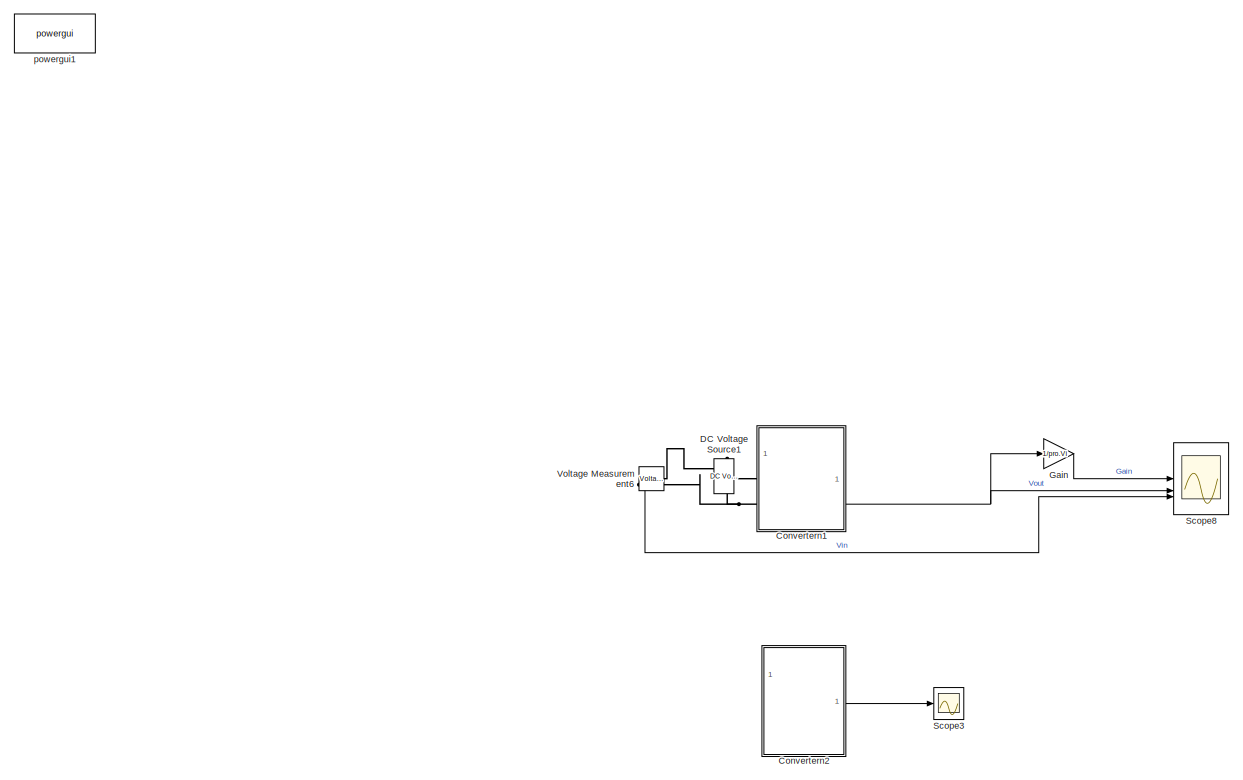
[diagram: root canvas - part 1/2, top left region]
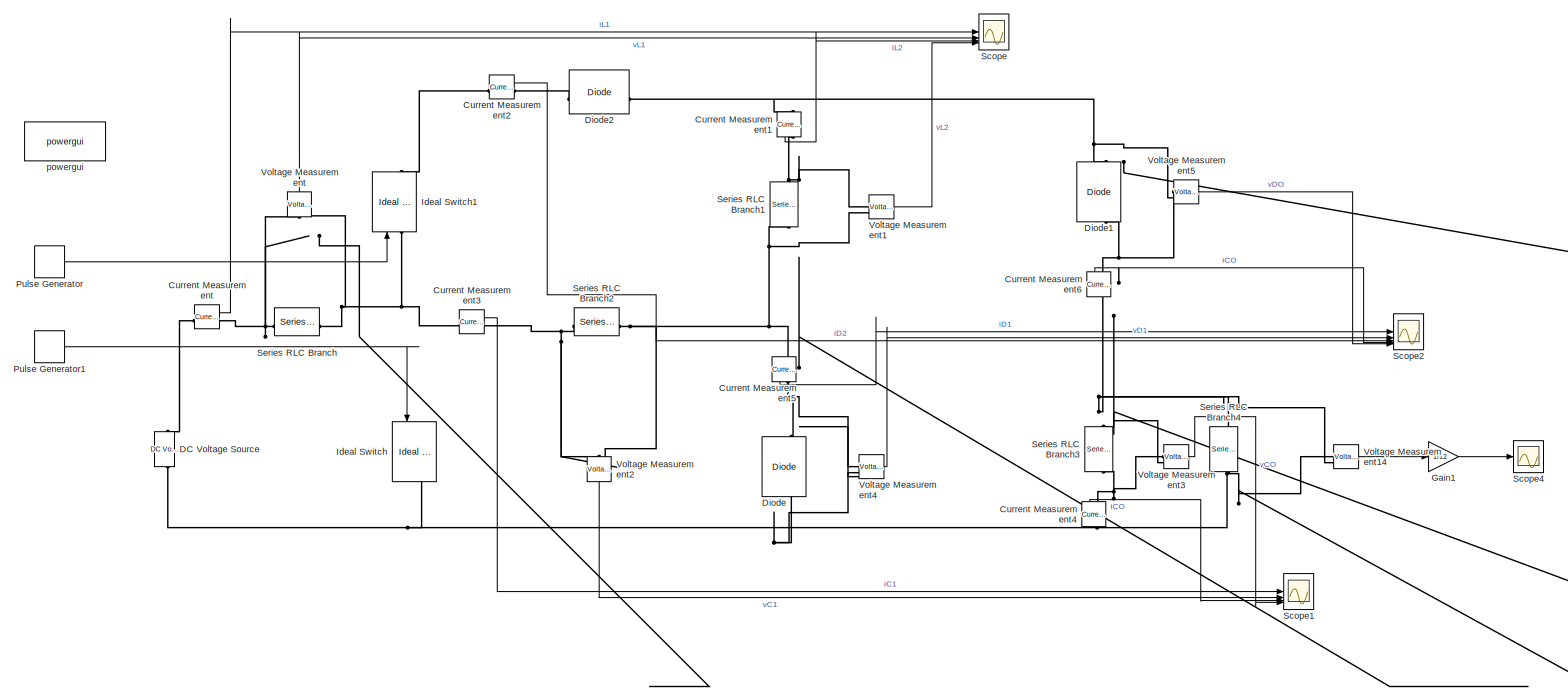
[diagram: root canvas - part 2/2, top center region]
MODEL slx_2b5bfb5463e5
KIND model
CONFIG AbsTol = auto
CONFIG EnableMultiTasking = off
CONFIG FixedStep = auto
CONFIG MaxStep = auto
CONFIG MinStep = auto
CONFIG RelTol = 1e-3
CONFIG SampleTimeConstraint = Unconstrained
CONFIG SolverName = VariableStepAuto
CONFIG StartTime = 0.0
CONFIG StopTime = 100/8000
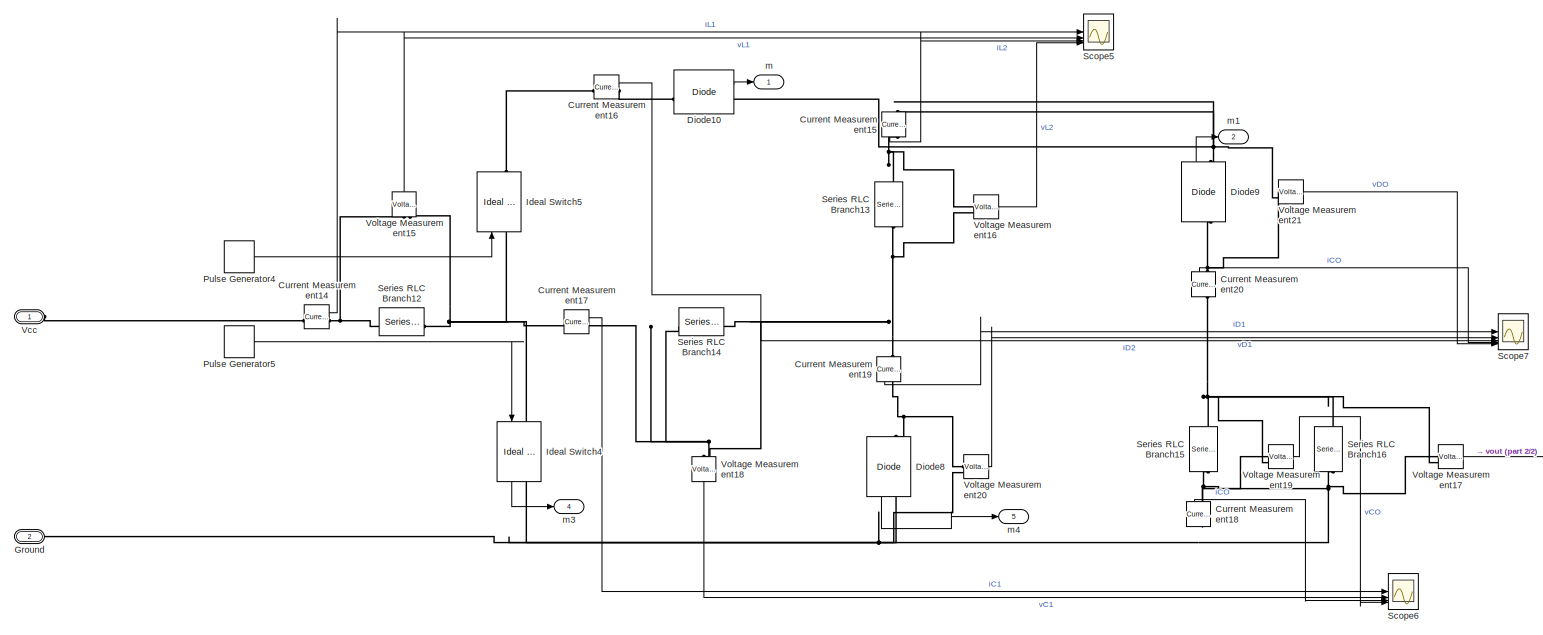
[diagram: Convertern1 - part 1/2, most of the canvas]
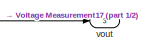
[diagram: Convertern1 - part 2/2, bottom right region]
BLOCK [SubSystem] Convertern1
BLOCK [Reference] Convertern1/Current Measurement14  REF=spsCurrentMeasurementLib/Current Measurement
  LibrarySourceBlock = sps_lib/Sensors and Measurements/Current Measurement
  SourceBlock = spsCurrentMeasurementLib/Current Measurement
  SourceType = Current Measurement
  UserDataPersistent = on
BLOCK [Reference] Convertern1/Current Measurement15  REF=spsCurrentMeasurementLib/Current Measurement
  LibrarySourceBlock = sps_lib/Sensors and Measurements/Current Measurement
  NameLocation = left
  SourceBlock = spsCurrentMeasurementLib/Current Measurement
  SourceType = Current Measurement
  UserDataPersistent = on
BLOCK [Reference] Convertern1/Current Measurement16  REF=spsCurrentMeasurementLib/Current Measurement
  LibrarySourceBlock = sps_lib/Sensors and Measurements/Current Measurement
  SourceBlock = spsCurrentMeasurementLib/Current Measurement
  SourceType = Current Measurement
  UserDataPersistent = on
BLOCK [Reference] Convertern1/Current Measurement17  REF=spsCurrentMeasurementLib/Current Measurement
  LibrarySourceBlock = sps_lib/Sensors and Measurements/Current Measurement
  SourceBlock = spsCurrentMeasurementLib/Current Measurement
  SourceType = Current Measurement
  UserDataPersistent = on
BLOCK [Reference] Convertern1/Current Measurement18  REF=spsCurrentMeasurementLib/Current Measurement
  LibrarySourceBlock = sps_lib/Sensors and Measurements/Current Measurement
  NameLocation = right
  SourceBlock = spsCurrentMeasurementLib/Current Measurement
  SourceType = Current Measurement
  UserDataPersistent = on
BLOCK [Reference] Convertern1/Current Measurement19  REF=spsCurrentMeasurementLib/Current Measurement
  LibrarySourceBlock = sps_lib/Sensors and Measurements/Current Measurement
  NameLocation = left
  SourceBlock = spsCurrentMeasurementLib/Current Measurement
  SourceType = Current Measurement
  UserDataPersistent = on
BLOCK [Reference] Convertern1/Current Measurement20  REF=spsCurrentMeasurementLib/Current Measurement
  LibrarySourceBlock = sps_lib/Sensors and Measurements/Current Measurement
  NameLocation = right
  SourceBlock = spsCurrentMeasurementLib/Current Measurement
  SourceType = Current Measurement
  UserDataPersistent = on
BLOCK [Reference] Convertern1/Diode10  REF=spsDiodeLib/Diode
  LibrarySourceBlock = sps_lib/Power Electronics/Diode
  SourceBlock = spsDiodeLib/Diode
  SourceType = Diode
BLOCK [Reference] Convertern1/Diode8  REF=spsDiodeLib/Diode
  LibrarySourceBlock = sps_lib/Power Electronics/Diode
  NameLocation = left
  SourceBlock = spsDiodeLib/Diode
  SourceType = Diode
BLOCK [Reference] Convertern1/Diode9  REF=spsDiodeLib/Diode
  LibrarySourceBlock = sps_lib/Power Electronics/Diode
  NameLocation = right
  SourceBlock = spsDiodeLib/Diode
  SourceType = Diode
BLOCK [PMIOPort] Convertern1/Ground
  Port = 2
  Side = Left
BLOCK [Reference] Convertern1/Ideal Switch4  REF=spsIdealSwitchLib/Ideal Switch
  LibrarySourceBlock = sps_lib/Power Electronics/Ideal Switch
  NameLocation = left
  SourceBlock = spsIdealSwitchLib/Ideal Switch
  SourceType = Ideal Switch
BLOCK [Reference] Convertern1/Ideal Switch5  REF=spsIdealSwitchLib/Ideal Switch
  LibrarySourceBlock = sps_lib/Power Electronics/Ideal Switch
  NameLocation = right
  SourceBlock = spsIdealSwitchLib/Ideal Switch
  SourceType = Ideal Switch
BLOCK [DiscretePulseGenerator] Convertern1/Pulse Generator4
  Period = 1/pro.f
  PulseType = Time based
  PulseWidth = 50
BLOCK [DiscretePulseGenerator] Convertern1/Pulse Generator5
  Period = 1/pro.f
  PulseType = Time based
  PulseWidth = 50
BLOCK [Scope] Convertern1/Scope5
  Floating = off
  NumInputPorts = 4
  ScopeSpecificationString = Simulink.scopes.TimeScopeBlockCfg('CurrentConfiguration', extmgr.ConfigurationSet(extmgr.Configuration('Core','General UI',true),extmgr.Configuration('Core','Source UI',true),extmgr.Configuration('Sources','WiredSimulink',true,'DataLoggingVariableName','ScopeData1'),extmgr.Configuration('Visuals','Time Domain',true,'SerializedDisplays',{struct('MinYLimReal','-1.72052','MaxYLimReal','8.05356','YLab...<+3781ch>
BLOCK [Scope] Convertern1/Scope6
  Floating = off
  NumInputPorts = 4
  ScopeSpecificationString = Simulink.scopes.TimeScopeBlockCfg('CurrentConfiguration', extmgr.ConfigurationSet(extmgr.Configuration('Core','General UI',true),extmgr.Configuration('Core','Source UI',true),extmgr.Configuration('Sources','WiredSimulink',true,'DataLoggingVariableName','ScopeData2'),extmgr.Configuration('Visuals','Time Domain',true,'SerializedDisplays',{struct('MinYLimReal','-5.68934','MaxYLimReal','7.62714','YLab...<+3411ch>
BLOCK [Scope] Convertern1/Scope7
  Floating = off
  NumInputPorts = 5
  ScopeSpecificationString = Simulink.scopes.TimeScopeBlockCfg('CurrentConfiguration', extmgr.ConfigurationSet(extmgr.Configuration('Core','General UI',true),extmgr.Configuration('Core','Source UI',true),extmgr.Configuration('Sources','WiredSimulink',true,'DataLoggingVariableName','ScopeData3'),extmgr.Configuration('Visuals','Time Domain',true,'SerializedDisplays',{struct('MinYLimReal','-3.28408','MaxYLimReal','29.55671','YLa...<+6150ch>
BLOCK [Reference] Convertern1/Series RLC Branch12  REF=spsSeriesRLCBranchLib/Series RLC Branch
  LibrarySourceBlock = sps_lib/Passives/Series RLC Branch
  SourceBlock = spsSeriesRLCBranchLib/Series RLC Branch
  SourceType = Series RLC Branch
BLOCK [Reference] Convertern1/Series RLC Branch13  REF=spsSeriesRLCBranchLib/Series RLC Branch
  LibrarySourceBlock = sps_lib/Passives/Series RLC Branch
  NameLocation = left
  SourceBlock = spsSeriesRLCBranchLib/Series RLC Branch
  SourceType = Series RLC Branch
BLOCK [Reference] Convertern1/Series RLC Branch14  REF=spsSeriesRLCBranchLib/Series RLC Branch
  LibrarySourceBlock = sps_lib/Passives/Series RLC Branch
  SourceBlock = spsSeriesRLCBranchLib/Series RLC Branch
  SourceType = Series RLC Branch
BLOCK [Reference] Convertern1/Series RLC Branch15  REF=spsSeriesRLCBranchLib/Series RLC Branch
  LibrarySourceBlock = sps_lib/Passives/Series RLC Branch
  NameLocation = right
  SourceBlock = spsSeriesRLCBranchLib/Series RLC Branch
  SourceType = Series RLC Branch
BLOCK [Reference] Convertern1/Series RLC Branch16  REF=spsSeriesRLCBranchLib/Series RLC Branch
  LibrarySourceBlock = sps_lib/Passives/Series RLC Branch
  NameLocation = right
  SourceBlock = spsSeriesRLCBranchLib/Series RLC Branch
  SourceType = Series RLC Branch
BLOCK [PMIOPort] Convertern1/Vcc
  Side = Left
BLOCK [Reference] Convertern1/Voltage Measurement15  REF=spsVoltageMeasurementLib/Voltage Measurement
  LibrarySourceBlock = sps_lib/Sensors and Measurements/Voltage Measurement
  NameLocation = right
  SourceBlock = spsVoltageMeasurementLib/Voltage Measurement
  SourceType = Voltage Measurement
  UserDataPersistent = on
BLOCK [Reference] Convertern1/Voltage Measurement16  REF=spsVoltageMeasurementLib/Voltage Measurement
  LibrarySourceBlock = sps_lib/Sensors and Measurements/Voltage Measurement
  SourceBlock = spsVoltageMeasurementLib/Voltage Measurement
  SourceType = Voltage Measurement
  UserDataPersistent = on
BLOCK [Reference] Convertern1/Voltage Measurement17  REF=spsVoltageMeasurementLib/Voltage Measurement
  LibrarySourceBlock = sps_lib/Sensors and Measurements/Voltage Measurement
  SourceBlock = spsVoltageMeasurementLib/Voltage Measurement
  SourceType = Voltage Measurement
  UserDataPersistent = on
BLOCK [Reference] Convertern1/Voltage Measurement18  REF=spsVoltageMeasurementLib/Voltage Measurement
  LibrarySourceBlock = sps_lib/Sensors and Measurements/Voltage Measurement
  NameLocation = left
  SourceBlock = spsVoltageMeasurementLib/Voltage Measurement
  SourceType = Voltage Measurement
  UserDataPersistent = on
BLOCK [Reference] Convertern1/Voltage Measurement19  REF=spsVoltageMeasurementLib/Voltage Measurement
  LibrarySourceBlock = sps_lib/Sensors and Measurements/Voltage Measurement
  SourceBlock = spsVoltageMeasurementLib/Voltage Measurement
  SourceType = Voltage Measurement
  UserDataPersistent = on
BLOCK [Reference] Convertern1/Voltage Measurement20  REF=spsVoltageMeasurementLib/Voltage Measurement
  LibrarySourceBlock = sps_lib/Sensors and Measurements/Voltage Measurement
  SourceBlock = spsVoltageMeasurementLib/Voltage Measurement
  SourceType = Voltage Measurement
  UserDataPersistent = on
BLOCK [Reference] Convertern1/Voltage Measurement21  REF=spsVoltageMeasurementLib/Voltage Measurement
  LibrarySourceBlock = sps_lib/Sensors and Measurements/Voltage Measurement
  SourceBlock = spsVoltageMeasurementLib/Voltage Measurement
  SourceType = Voltage Measurement
  UserDataPersistent = on
BLOCK [Outport] Convertern1/m
BLOCK [Outport] Convertern1/m1
  Port = 2
BLOCK [Outport] Convertern1/m3
  Port = 4
BLOCK [Outport] Convertern1/m4
  Port = 5
BLOCK [Outport] Convertern1/vout
  Port = 3
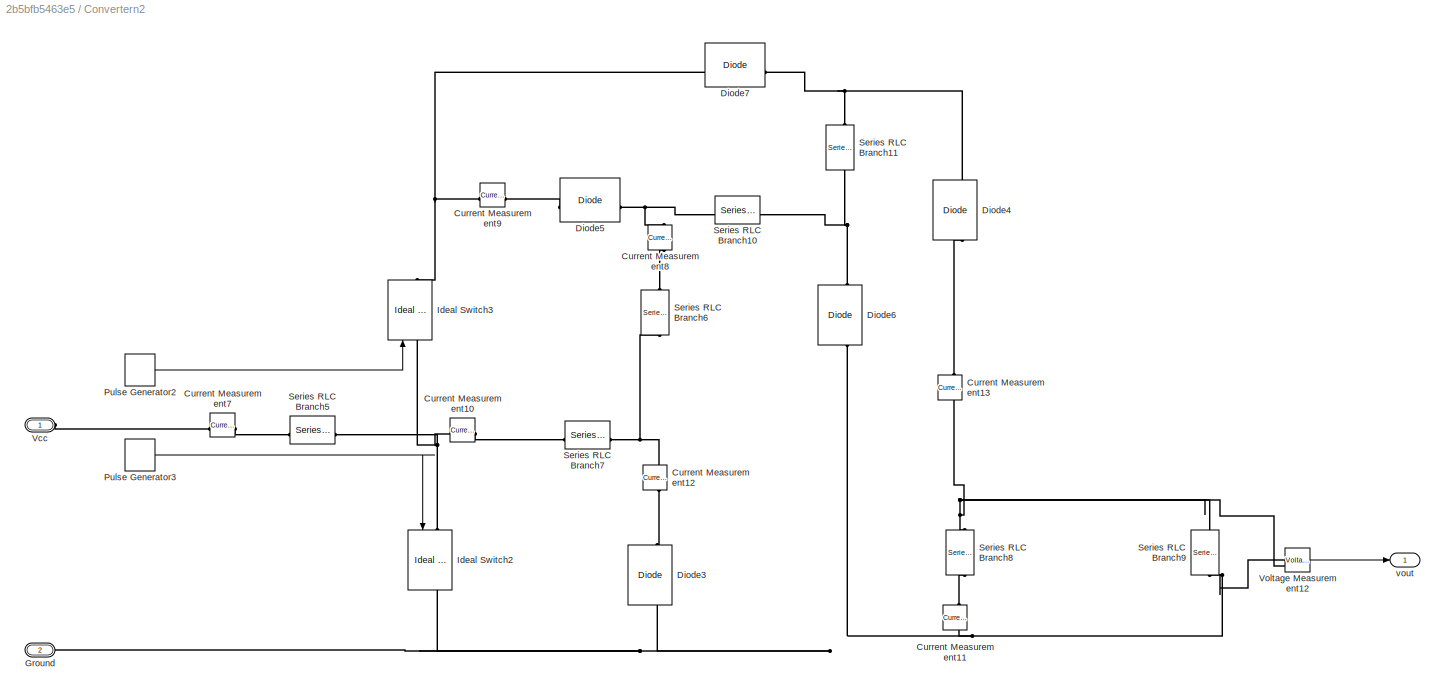
BLOCK [SubSystem] Convertern2
BLOCK [Reference] Convertern2/Current Measurement10  REF=spsCurrentMeasurementLib/Current Measurement
  LibrarySourceBlock = sps_lib/Sensors and Measurements/Current Measurement
  SourceBlock = spsCurrentMeasurementLib/Current Measurement
  SourceType = Current Measurement
  UserDataPersistent = on
BLOCK [Reference] Convertern2/Current Measurement11  REF=spsCurrentMeasurementLib/Current Measurement
  LibrarySourceBlock = sps_lib/Sensors and Measurements/Current Measurement
  NameLocation = right
  SourceBlock = spsCurrentMeasurementLib/Current Measurement
  SourceType = Current Measurement
  UserDataPersistent = on
BLOCK [Reference] Convertern2/Current Measurement12  REF=spsCurrentMeasurementLib/Current Measurement
  LibrarySourceBlock = sps_lib/Sensors and Measurements/Current Measurement
  NameLocation = left
  SourceBlock = spsCurrentMeasurementLib/Current Measurement
  SourceType = Current Measurement
  UserDataPersistent = on
BLOCK [Reference] Convertern2/Current Measurement13  REF=spsCurrentMeasurementLib/Current Measurement
  LibrarySourceBlock = sps_lib/Sensors and Measurements/Current Measurement
  NameLocation = right
  SourceBlock = spsCurrentMeasurementLib/Current Measurement
  SourceType = Current Measurement
  UserDataPersistent = on
BLOCK [Reference] Convertern2/Current Measurement7  REF=spsCurrentMeasurementLib/Current Measurement
  LibrarySourceBlock = sps_lib/Sensors and Measurements/Current Measurement
  SourceBlock = spsCurrentMeasurementLib/Current Measurement
  SourceType = Current Measurement
  UserDataPersistent = on
BLOCK [Reference] Convertern2/Current Measurement8  REF=spsCurrentMeasurementLib/Current Measurement
  LibrarySourceBlock = sps_lib/Sensors and Measurements/Current Measurement
  NameLocation = left
  SourceBlock = spsCurrentMeasurementLib/Current Measurement
  SourceType = Current Measurement
  UserDataPersistent = on
BLOCK [Reference] Convertern2/Current Measurement9  REF=spsCurrentMeasurementLib/Current Measurement
  LibrarySourceBlock = sps_lib/Sensors and Measurements/Current Measurement
  SourceBlock = spsCurrentMeasurementLib/Current Measurement
  SourceType = Current Measurement
  UserDataPersistent = on
BLOCK [Reference] Convertern2/Diode3  REF=spsDiodeLib/Diode
  LibrarySourceBlock = sps_lib/Power Electronics/Diode
  NameLocation = left
  SourceBlock = spsDiodeLib/Diode
  SourceType = Diode
BLOCK [Reference] Convertern2/Diode4  REF=spsDiodeLib/Diode
  LibrarySourceBlock = sps_lib/Power Electronics/Diode
  NameLocation = right
  SourceBlock = spsDiodeLib/Diode
  SourceType = Diode
BLOCK [Reference] Convertern2/Diode5  REF=spsDiodeLib/Diode
  LibrarySourceBlock = sps_lib/Power Electronics/Diode
  SourceBlock = spsDiodeLib/Diode
  SourceType = Diode
BLOCK [Reference] Convertern2/Diode6  REF=spsDiodeLib/Diode
  LibrarySourceBlock = sps_lib/Power Electronics/Diode
  NameLocation = left
  SourceBlock = spsDiodeLib/Diode
  SourceType = Diode
BLOCK [Reference] Convertern2/Diode7  REF=spsDiodeLib/Diode
  LibrarySourceBlock = sps_lib/Power Electronics/Diode
  SourceBlock = spsDiodeLib/Diode
  SourceType = Diode
BLOCK [PMIOPort] Convertern2/Ground
  Port = 2
  Side = Left
BLOCK [Reference] Convertern2/Ideal Switch2  REF=spsIdealSwitchLib/Ideal Switch
  LibrarySourceBlock = sps_lib/Power Electronics/Ideal Switch
  NameLocation = left
  SourceBlock = spsIdealSwitchLib/Ideal Switch
  SourceType = Ideal Switch
BLOCK [Reference] Convertern2/Ideal Switch3  REF=spsIdealSwitchLib/Ideal Switch
  LibrarySourceBlock = sps_lib/Power Electronics/Ideal Switch
  NameLocation = right
  SourceBlock = spsIdealSwitchLib/Ideal Switch
  SourceType = Ideal Switch
BLOCK [DiscretePulseGenerator] Convertern2/Pulse Generator2
  Period = 1/pro.f
  PulseType = Time based
  PulseWidth = 50
BLOCK [DiscretePulseGenerator] Convertern2/Pulse Generator3
  Period = 1/pro.f
  PulseType = Time based
  PulseWidth = 50
BLOCK [Reference] Convertern2/Series RLC Branch10  REF=spsSeriesRLCBranchLib/Series RLC Branch
  LibrarySourceBlock = sps_lib/Passives/Series RLC Branch
  SourceBlock = spsSeriesRLCBranchLib/Series RLC Branch
  SourceType = Series RLC Branch
BLOCK [Reference] Convertern2/Series RLC Branch11  REF=spsSeriesRLCBranchLib/Series RLC Branch
  LibrarySourceBlock = sps_lib/Passives/Series RLC Branch
  NameLocation = left
  SourceBlock = spsSeriesRLCBranchLib/Series RLC Branch
  SourceType = Series RLC Branch
BLOCK [Reference] Convertern2/Series RLC Branch5  REF=spsSeriesRLCBranchLib/Series RLC Branch
  LibrarySourceBlock = sps_lib/Passives/Series RLC Branch
  SourceBlock = spsSeriesRLCBranchLib/Series RLC Branch
  SourceType = Series RLC Branch
BLOCK [Reference] Convertern2/Series RLC Branch6  REF=spsSeriesRLCBranchLib/Series RLC Branch
  LibrarySourceBlock = sps_lib/Passives/Series RLC Branch
  NameLocation = left
  SourceBlock = spsSeriesRLCBranchLib/Series RLC Branch
  SourceType = Series RLC Branch
BLOCK [Reference] Convertern2/Series RLC Branch7  REF=spsSeriesRLCBranchLib/Series RLC Branch
  LibrarySourceBlock = sps_lib/Passives/Series RLC Branch
  SourceBlock = spsSeriesRLCBranchLib/Series RLC Branch
  SourceType = Series RLC Branch
BLOCK [Reference] Convertern2/Series RLC Branch8  REF=spsSeriesRLCBranchLib/Series RLC Branch
  LibrarySourceBlock = sps_lib/Passives/Series RLC Branch
  NameLocation = right
  SourceBlock = spsSeriesRLCBranchLib/Series RLC Branch
  SourceType = Series RLC Branch
BLOCK [Reference] Convertern2/Series RLC Branch9  REF=spsSeriesRLCBranchLib/Series RLC Branch
  LibrarySourceBlock = sps_lib/Passives/Series RLC Branch
  NameLocation = right
  SourceBlock = spsSeriesRLCBranchLib/Series RLC Branch
  SourceType = Series RLC Branch
BLOCK [PMIOPort] Convertern2/Vcc
  Side = Left
BLOCK [Reference] Convertern2/Voltage Measurement12  REF=spsVoltageMeasurementLib/Voltage Measurement
  LibrarySourceBlock = sps_lib/Sensors and Measurements/Voltage Measurement
  SourceBlock = spsVoltageMeasurementLib/Voltage Measurement
  SourceType = Voltage Measurement
  UserDataPersistent = on
BLOCK [Outport] Convertern2/vout
BLOCK [Reference] Current Measurement  REF=spsCurrentMeasurementLib/Current Measurement
  LibrarySourceBlock = sps_lib/Sensors and Measurements/Current Measurement
  SourceBlock = spsCurrentMeasurementLib/Current Measurement
  SourceType = Current Measurement
  UserDataPersistent = on
BLOCK [Reference] Current Measurement1  REF=spsCurrentMeasurementLib/Current Measurement
  LibrarySourceBlock = sps_lib/Sensors and Measurements/Current Measurement
  NameLocation = left
  SourceBlock = spsCurrentMeasurementLib/Current Measurement
  SourceType = Current Measurement
  UserDataPersistent = on
BLOCK [Reference] Current Measurement2  REF=spsCurrentMeasurementLib/Current Measurement
  LibrarySourceBlock = sps_lib/Sensors and Measurements/Current Measurement
  SourceBlock = spsCurrentMeasurementLib/Current Measurement
  SourceType = Current Measurement
  UserDataPersistent = on
BLOCK [Reference] Current Measurement3  REF=spsCurrentMeasurementLib/Current Measurement
  LibrarySourceBlock = sps_lib/Sensors and Measurements/Current Measurement
  SourceBlock = spsCurrentMeasurementLib/Current Measurement
  SourceType = Current Measurement
  UserDataPersistent = on
BLOCK [Reference] Current Measurement4  REF=spsCurrentMeasurementLib/Current Measurement
  LibrarySourceBlock = sps_lib/Sensors and Measurements/Current Measurement
  NameLocation = right
  SourceBlock = spsCurrentMeasurementLib/Current Measurement
  SourceType = Current Measurement
  UserDataPersistent = on
BLOCK [Reference] Current Measurement5  REF=spsCurrentMeasurementLib/Current Measurement
  LibrarySourceBlock = sps_lib/Sensors and Measurements/Current Measurement
  NameLocation = left
  SourceBlock = spsCurrentMeasurementLib/Current Measurement
  SourceType = Current Measurement
  UserDataPersistent = on
BLOCK [Reference] Current Measurement6  REF=spsCurrentMeasurementLib/Current Measurement
  LibrarySourceBlock = sps_lib/Sensors and Measurements/Current Measurement
  NameLocation = right
  SourceBlock = spsCurrentMeasurementLib/Current Measurement
  SourceType = Current Measurement
  UserDataPersistent = on
BLOCK [Reference] DC Voltage Source  REF=spsDCVoltageSourceLib/DC Voltage Source
  LibrarySourceBlock = sps_lib/Sources/DC Voltage Source
  SourceBlock = spsDCVoltageSourceLib/DC Voltage Source
  SourceType = DC Voltage Source
BLOCK [Reference] DC Voltage Source1  REF=spsDCVoltageSourceLib/DC Voltage Source
  LibrarySourceBlock = sps_lib/Sources/DC Voltage Source
  SourceBlock = spsDCVoltageSourceLib/DC Voltage Source
  SourceType = DC Voltage Source
BLOCK [Reference] Diode  REF=spsDiodeLib/Diode
  LibrarySourceBlock = sps_lib/Power Electronics/Diode
  NameLocation = left
  SourceBlock = spsDiodeLib/Diode
  SourceType = Diode
BLOCK [Reference] Diode1  REF=spsDiodeLib/Diode
  LibrarySourceBlock = sps_lib/Power Electronics/Diode
  NameLocation = right
  SourceBlock = spsDiodeLib/Diode
  SourceType = Diode
BLOCK [Reference] Diode2  REF=spsDiodeLib/Diode
  LibrarySourceBlock = sps_lib/Power Electronics/Diode
  SourceBlock = spsDiodeLib/Diode
  SourceType = Diode
BLOCK [Gain] Gain
  Gain = 1/pro.Vi
BLOCK [Gain] Gain1
  Gain = 1/12
BLOCK [Reference] Ideal Switch  REF=spsIdealSwitchLib/Ideal Switch
  LibrarySourceBlock = sps_lib/Power Electronics/Ideal Switch
  NameLocation = left
  SourceBlock = spsIdealSwitchLib/Ideal Switch
  SourceType = Ideal Switch
BLOCK [Reference] Ideal Switch1  REF=spsIdealSwitchLib/Ideal Switch
  LibrarySourceBlock = sps_lib/Power Electronics/Ideal Switch
  NameLocation = right
  SourceBlock = spsIdealSwitchLib/Ideal Switch
  SourceType = Ideal Switch
BLOCK [DiscretePulseGenerator] Pulse Generator
  Period = 1/pro.f
  PulseType = Time based
  PulseWidth = 50
BLOCK [DiscretePulseGenerator] Pulse Generator1
  Period = 1/pro.f
  PulseType = Time based
  PulseWidth = 50
BLOCK [Scope] Scope
  Floating = off
  NumInputPorts = 4
  ScopeSpecificationString = Simulink.scopes.TimeScopeBlockCfg('CurrentConfiguration', extmgr.ConfigurationSet(extmgr.Configuration('Core','General UI',true),extmgr.Configuration('Core','Source UI',true),extmgr.Configuration('Sources','WiredSimulink',true),extmgr.Configuration('Visuals','Time Domain',true,'SerializedDisplays',{struct('MinYLimReal','-0.2303','MaxYLimReal','0.36711','YLabelReal','','MinYLimMag','0.00000','MaxYL...<+3739ch>
BLOCK [Scope] Scope1
  Floating = off
  NumInputPorts = 4
  ScopeSpecificationString = Simulink.scopes.TimeScopeBlockCfg('CurrentConfiguration', extmgr.ConfigurationSet(extmgr.Configuration('Core','General UI',true),extmgr.Configuration('Core','Source UI',true),extmgr.Configuration('Sources','WiredSimulink',true,'DataLoggingVariableName','ScopeData1'),extmgr.Configuration('Visuals','Time Domain',true,'SerializedDisplays',{struct('MinYLimReal','-0.35778','MaxYLimReal','0.33932','YLab...<+3410ch>
BLOCK [Scope] Scope2
  Floating = off
  NumInputPorts = 5
  ScopeSpecificationString = Simulink.scopes.TimeScopeBlockCfg('CurrentConfiguration', extmgr.ConfigurationSet(extmgr.Configuration('Core','General UI',true),extmgr.Configuration('Core','Source UI',true),extmgr.Configuration('Sources','WiredSimulink',true,'DataLoggingVariableName','ScopeData2'),extmgr.Configuration('Visuals','Time Domain',true,'SerializedDisplays',{struct('MinYLimReal','-0.08003','MaxYLimReal','0.63077','YLab...<+6108ch>
BLOCK [Scope] Scope3
  Floating = off
  NumInputPorts = 1
  ScopeSpecificationString = Simulink.scopes.TimeScopeBlockCfg('CurrentConfiguration', extmgr.ConfigurationSet(extmgr.Configuration('Core','General UI',true),extmgr.Configuration('Core','Source UI',true),extmgr.Configuration('Sources','WiredSimulink',true,'DataLoggingVariableName','ScopeData3'),extmgr.Configuration('Visuals','Time Domain',true,'SerializedDisplays',{struct('MinYLimReal','-1.00000','MaxYLimReal','1.00000','YLab...<+1370ch>
BLOCK [Scope] Scope4
  Floating = off
  NumInputPorts = 1
  ScopeSpecificationString = Simulink.scopes.TimeScopeBlockCfg('CurrentConfiguration', extmgr.ConfigurationSet(extmgr.Configuration('Core','General UI',true),extmgr.Configuration('Core','Source UI',true),extmgr.Configuration('Sources','WiredSimulink',true,'DataLoggingVariableName','ScopeData4'),extmgr.Configuration('Visuals','Time Domain',true,'SerializedDisplays',{struct('MinYLimReal','-0.53041','MaxYLimReal','4.77366','YLab...<+1364ch>
BLOCK [Scope] Scope8
  Floating = off
  NumInputPorts = 3
  ScopeSpecificationString = Simulink.scopes.TimeScopeBlockCfg('CurrentConfiguration', extmgr.ConfigurationSet(extmgr.Configuration('Core','General UI',true),extmgr.Configuration('Core','Source UI',true),extmgr.Configuration('Sources','WiredSimulink',true,'DataLoggingVariableName','ScopeData4'),extmgr.Configuration('Visuals','Time Domain',true,'SerializedDisplays',{struct('MinYLimReal','-0.53768','MaxYLimReal','4.83916','YLab...<+2102ch>
BLOCK [Reference] Series RLC Branch  REF=spsSeriesRLCBranchLib/Series RLC Branch
  LibrarySourceBlock = sps_lib/Passives/Series RLC Branch
  SourceBlock = spsSeriesRLCBranchLib/Series RLC Branch
  SourceType = Series RLC Branch
BLOCK [Reference] Series RLC Branch1  REF=spsSeriesRLCBranchLib/Series RLC Branch
  LibrarySourceBlock = sps_lib/Passives/Series RLC Branch
  NameLocation = left
  SourceBlock = spsSeriesRLCBranchLib/Series RLC Branch
  SourceType = Series RLC Branch
BLOCK [Reference] Series RLC Branch2  REF=spsSeriesRLCBranchLib/Series RLC Branch
  LibrarySourceBlock = sps_lib/Passives/Series RLC Branch
  SourceBlock = spsSeriesRLCBranchLib/Series RLC Branch
  SourceType = Series RLC Branch
BLOCK [Reference] Series RLC Branch3  REF=spsSeriesRLCBranchLib/Series RLC Branch
  LibrarySourceBlock = sps_lib/Passives/Series RLC Branch
  NameLocation = right
  SourceBlock = spsSeriesRLCBranchLib/Series RLC Branch
  SourceType = Series RLC Branch
BLOCK [Reference] Series RLC Branch4  REF=spsSeriesRLCBranchLib/Series RLC Branch
  LibrarySourceBlock = sps_lib/Passives/Series RLC Branch
  NameLocation = right
  SourceBlock = spsSeriesRLCBranchLib/Series RLC Branch
  SourceType = Series RLC Branch
BLOCK [Reference] Voltage Measurement  REF=spsVoltageMeasurementLib/Voltage Measurement
  LibrarySourceBlock = sps_lib/Sensors and Measurements/Voltage Measurement
  NameLocation = right
  SourceBlock = spsVoltageMeasurementLib/Voltage Measurement
  SourceType = Voltage Measurement
  UserDataPersistent = on
BLOCK [Reference] Voltage Measurement1  REF=spsVoltageMeasurementLib/Voltage Measurement
  LibrarySourceBlock = sps_lib/Sensors and Measurements/Voltage Measurement
  SourceBlock = spsVoltageMeasurementLib/Voltage Measurement
  SourceType = Voltage Measurement
  UserDataPersistent = on
BLOCK [Reference] Voltage Measurement14  REF=spsVoltageMeasurementLib/Voltage Measurement
  LibrarySourceBlock = sps_lib/Sensors and Measurements/Voltage Measurement
  SourceBlock = spsVoltageMeasurementLib/Voltage Measurement
  SourceType = Voltage Measurement
  UserDataPersistent = on
BLOCK [Reference] Voltage Measurement2  REF=spsVoltageMeasurementLib/Voltage Measurement
  LibrarySourceBlock = sps_lib/Sensors and Measurements/Voltage Measurement
  NameLocation = left
  SourceBlock = spsVoltageMeasurementLib/Voltage Measurement
  SourceType = Voltage Measurement
  UserDataPersistent = on
BLOCK [Reference] Voltage Measurement3  REF=spsVoltageMeasurementLib/Voltage Measurement
  LibrarySourceBlock = sps_lib/Sensors and Measurements/Voltage Measurement
  SourceBlock = spsVoltageMeasurementLib/Voltage Measurement
  SourceType = Voltage Measurement
  UserDataPersistent = on
BLOCK [Reference] Voltage Measurement4  REF=spsVoltageMeasurementLib/Voltage Measurement
  LibrarySourceBlock = sps_lib/Sensors and Measurements/Voltage Measurement
  SourceBlock = spsVoltageMeasurementLib/Voltage Measurement
  SourceType = Voltage Measurement
  UserDataPersistent = on
BLOCK [Reference] Voltage Measurement5  REF=spsVoltageMeasurementLib/Voltage Measurement
  LibrarySourceBlock = sps_lib/Sensors and Measurements/Voltage Measurement
  SourceBlock = spsVoltageMeasurementLib/Voltage Measurement
  SourceType = Voltage Measurement
  UserDataPersistent = on
BLOCK [Reference] Voltage Measurement6  REF=spsVoltageMeasurementLib/Voltage Measurement
  LibrarySourceBlock = sps_lib/Sensors and Measurements/Voltage Measurement
  NameLocation = top
  SourceBlock = spsVoltageMeasurementLib/Voltage Measurement
  SourceType = Voltage Measurement
  UserDataPersistent = on
BLOCK [Reference] powergui  REF=sps_lib/powergui
  LibrarySourceBlock = sps_lib/powergui
  Priority = 1
  SourceBlock = sps_lib/powergui
  SourceType = PSB option menu block
BLOCK [Reference] powergui1  REF=spspowerguiLib/powergui
  LibrarySourceBlock = sps_lib/powergui
  Priority = 1
  SourceBlock = spspowerguiLib/powergui
  SourceType = PSB option menu block
LINE Convertern1/Current Measurement14:1 -> Convertern1/Scope5:1
LINE Convertern1/Current Measurement15:1 -> Convertern1/Scope5:3
LINE Convertern1/Current Measurement16:1 -> Convertern1/Scope7:3
LINE Convertern1/Current Measurement17:1 -> Convertern1/Scope6:1
LINE Convertern1/Current Measurement18:1 -> Convertern1/Scope6:3
LINE Convertern1/Current Measurement19:1 -> Convertern1/Scope7:1
LINE Convertern1/Current Measurement20:1 -> Convertern1/Scope7:4
LINE Convertern1/Diode10:1 -> Convertern1/m:1
LINE Convertern1/Diode8:1 -> Convertern1/m4:1
LINE Convertern1/Diode9:1 -> Convertern1/m1:1
LINE Convertern1/Ideal Switch4:1 -> Convertern1/m3:1
LINE Convertern1/Pulse Generator4:1 -> Convertern1/Ideal Switch5:1
LINE Convertern1/Pulse Generator5:1 -> Convertern1/Ideal Switch4:1
LINE Convertern1/Voltage Measurement15:1 -> Convertern1/Scope5:2
LINE Convertern1/Voltage Measurement16:1 -> Convertern1/Scope5:4
LINE Convertern1/Voltage Measurement17:1 -> Convertern1/vout:1
LINE Convertern1/Voltage Measurement18:1 -> Convertern1/Scope6:2
LINE Convertern1/Voltage Measurement19:1 -> Convertern1/Scope6:4
LINE Convertern1/Voltage Measurement20:1 -> Convertern1/Scope7:2
LINE Convertern1/Voltage Measurement21:1 -> Convertern1/Scope7:5
NET Convertern1:3 -> Gain:1, Scope8:2
LINE Convertern2/Pulse Generator2:1 -> Convertern2/Ideal Switch3:1
LINE Convertern2/Pulse Generator3:1 -> Convertern2/Ideal Switch2:1
LINE Convertern2/Voltage Measurement12:1 -> Convertern2/vout:1
LINE Convertern2:1 -> Scope3:1
LINE Current Measurement1:1 -> Scope:3
LINE Current Measurement2:1 -> Scope2:3
LINE Current Measurement3:1 -> Scope1:1
LINE Current Measurement4:1 -> Scope1:3
LINE Current Measurement5:1 -> Scope2:1
LINE Current Measurement6:1 -> Scope2:4
LINE Current Measurement:1 -> Scope:1
LINE Gain1:1 -> Scope4:1
LINE Gain:1 -> Scope8:1
LINE Pulse Generator1:1 -> Ideal Switch:1
LINE Pulse Generator:1 -> Ideal Switch1:1
LINE Voltage Measurement14:1 -> Gain1:1
LINE Voltage Measurement1:1 -> Scope:4
LINE Voltage Measurement2:1 -> Scope1:2
LINE Voltage Measurement3:1 -> Scope1:4
LINE Voltage Measurement4:1 -> Scope2:2
LINE Voltage Measurement5:1 -> Scope2:5
LINE Voltage Measurement6:1 -> Scope8:3
LINE Voltage Measurement:1 -> Scope:2
PLINE Convertern1/Current Measurement14:LConn1 -- Convertern1/Vcc:RConn1
PNET net1: Convertern1/Current Measurement14:RConn1 -- Convertern1/Series RLC Branch12:LConn1 -- Convertern1/Voltage Measurement15:LConn1
PNET net2: Convertern1/Current Measurement15:LConn1 -- Convertern1/Diode10:RConn1 -- Convertern1/Diode9:RConn1 -- Convertern1/Voltage Measurement21:LConn2
PNET net3: Convertern1/Current Measurement15:RConn1 -- Convertern1/Series RLC Branch13:LConn1 -- Convertern1/Voltage Measurement16:LConn1
PLINE Convertern1/Current Measurement16:LConn1 -- Convertern1/Ideal Switch5:RConn1
PLINE Convertern1/Current Measurement16:RConn1 -- Convertern1/Diode10:LConn1
PNET net4: Convertern1/Current Measurement17:LConn1 -- Convertern1/Ideal Switch4:LConn1 -- Convertern1/Ideal Switch5:LConn1 -- Convertern1/Series RLC Branch12:RConn1 -- Convertern1/Voltage Measurement15:LConn2
PNET net5: Convertern1/Current Measurement17:RConn1 -- Convertern1/Series RLC Branch14:LConn1 -- Convertern1/Voltage Measurement18:LConn1
PNET net6: Convertern1/Current Measurement18:LConn1 -- Convertern1/Diode8:RConn1 -- Convertern1/Ground:RConn1 -- Convertern1/Ideal Switch4:RConn1 -- Convertern1/Series RLC Branch16:LConn1 -- Convertern1/Voltage Measurement17:LConn1 -- Convertern1/Voltage Measurement20:LConn2
PNET net7: Convertern1/Current Measurement18:RConn1 -- Convertern1/Series RLC Branch15:LConn1 -- Convertern1/Voltage Measurement19:LConn1
PNET net8: Convertern1/Current Measurement19:LConn1 -- Convertern1/Series RLC Branch13:RConn1 -- Convertern1/Series RLC Branch14:RConn1 -- Convertern1/Voltage Measurement16:LConn2 -- Convertern1/Voltage Measurement18:LConn2
PNET net9: Convertern1/Current Measurement19:RConn1 -- Convertern1/Diode8:LConn1 -- Convertern1/Voltage Measurement20:LConn1
PNET net10: Convertern1/Current Measurement20:LConn1 -- Convertern1/Series RLC Branch15:RConn1 -- Convertern1/Series RLC Branch16:RConn1 -- Convertern1/Voltage Measurement17:LConn2 -- Convertern1/Voltage Measurement19:LConn2
PNET net11: Convertern1/Current Measurement20:RConn1 -- Convertern1/Diode9:LConn1 -- Convertern1/Voltage Measurement21:LConn1
PNET net12: Convertern1:LConn1 -- DC Voltage Source1:RConn1 -- Voltage Measurement6:LConn1
PNET net13: Convertern1:LConn2 -- DC Voltage Source1:LConn1 -- Voltage Measurement6:LConn2
PNET net14: Convertern2/Current Measurement10:LConn1 -- Convertern2/Ideal Switch2:LConn1 -- Convertern2/Ideal Switch3:LConn1 -- Convertern2/Series RLC Branch5:RConn1
PLINE Convertern2/Current Measurement10:RConn1 -- Convertern2/Series RLC Branch7:LConn1
PNET net15: Convertern2/Current Measurement11:LConn1 -- Convertern2/Diode3:RConn1 -- Convertern2/Diode6:RConn1 -- Convertern2/Ground:RConn1 -- Convertern2/Ideal Switch2:RConn1 -- Convertern2/Series RLC Branch9:LConn1 -- Convertern2/Voltage Measurement12:LConn1
PLINE Convertern2/Current Measurement11:RConn1 -- Convertern2/Series RLC Branch8:LConn1
PNET net16: Convertern2/Current Measurement12:LConn1 -- Convertern2/Series RLC Branch6:RConn1 -- Convertern2/Series RLC Branch7:RConn1
PLINE Convertern2/Current Measurement12:RConn1 -- Convertern2/Diode3:LConn1
PNET net17: Convertern2/Current Measurement13:LConn1 -- Convertern2/Series RLC Branch8:RConn1 -- Convertern2/Series RLC Branch9:RConn1 -- Convertern2/Voltage Measurement12:LConn2
PLINE Convertern2/Current Measurement13:RConn1 -- Convertern2/Diode4:LConn1
PLINE Convertern2/Current Measurement7:LConn1 -- Convertern2/Vcc:RConn1
PLINE Convertern2/Current Measurement7:RConn1 -- Convertern2/Series RLC Branch5:LConn1
PNET net18: Convertern2/Current Measurement8:LConn1 -- Convertern2/Diode5:RConn1 -- Convertern2/Series RLC Branch10:LConn1
PLINE Convertern2/Current Measurement8:RConn1 -- Convertern2/Series RLC Branch6:LConn1
PNET net19: Convertern2/Current Measurement9:LConn1 -- Convertern2/Diode7:LConn1 -- Convertern2/Ideal Switch3:RConn1
PLINE Convertern2/Current Measurement9:RConn1 -- Convertern2/Diode5:LConn1
PNET net20: Convertern2/Diode4:RConn1 -- Convertern2/Diode7:RConn1 -- Convertern2/Series RLC Branch11:LConn1
PNET net21: Convertern2/Diode6:LConn1 -- Convertern2/Series RLC Branch10:RConn1 -- Convertern2/Series RLC Branch11:RConn1
PNET net22: Current Measurement1:LConn1 -- Diode1:RConn1 -- Diode2:RConn1 -- Voltage Measurement5:LConn2
PNET net23: Current Measurement1:RConn1 -- Series RLC Branch1:LConn1 -- Voltage Measurement1:LConn1
PLINE Current Measurement2:LConn1 -- Ideal Switch1:RConn1
PLINE Current Measurement2:RConn1 -- Diode2:LConn1
PNET net24: Current Measurement3:LConn1 -- Ideal Switch1:LConn1 -- Series RLC Branch:RConn1 -- Voltage Measurement:LConn2
PNET net25: Current Measurement3:RConn1 -- Series RLC Branch2:LConn1 -- Voltage Measurement2:LConn1
PNET net26: Current Measurement4:LConn1 -- DC Voltage Source:LConn1 -- Diode:RConn1 -- Ideal Switch:RConn1 -- Series RLC Branch4:LConn1 -- Voltage Measurement14:LConn1 -- Voltage Measurement4:LConn2
PNET net27: Current Measurement4:RConn1 -- Series RLC Branch3:LConn1 -- Voltage Measurement3:LConn1
PNET net28: Current Measurement5:LConn1 -- Series RLC Branch1:RConn1 -- Series RLC Branch2:RConn1 -- Voltage Measurement1:LConn2 -- Voltage Measurement2:LConn2
PNET net29: Current Measurement5:RConn1 -- Diode:LConn1 -- Voltage Measurement4:LConn1
PNET net30: Current Measurement6:LConn1 -- Series RLC Branch3:RConn1 -- Series RLC Branch4:RConn1 -- Voltage Measurement14:LConn2 -- Voltage Measurement3:LConn2
PNET net31: Current Measurement6:RConn1 -- Diode1:LConn1 -- Voltage Measurement5:LConn1
PLINE Current Measurement:LConn1 -- DC Voltage Source:RConn1
PNET net32: Current Measurement:RConn1 -- Series RLC Branch:LConn1 -- Voltage Measurement:LConn1
note: NET lines group one-source signal fan-out (src -> all destinations, sorted); 1:1 wires keep LINE; PNET lines group multi-terminal physical nets as a canonical sorted terminal list (undirected conserving connections); 2-terminal nets keep the pairwise PLINE form
